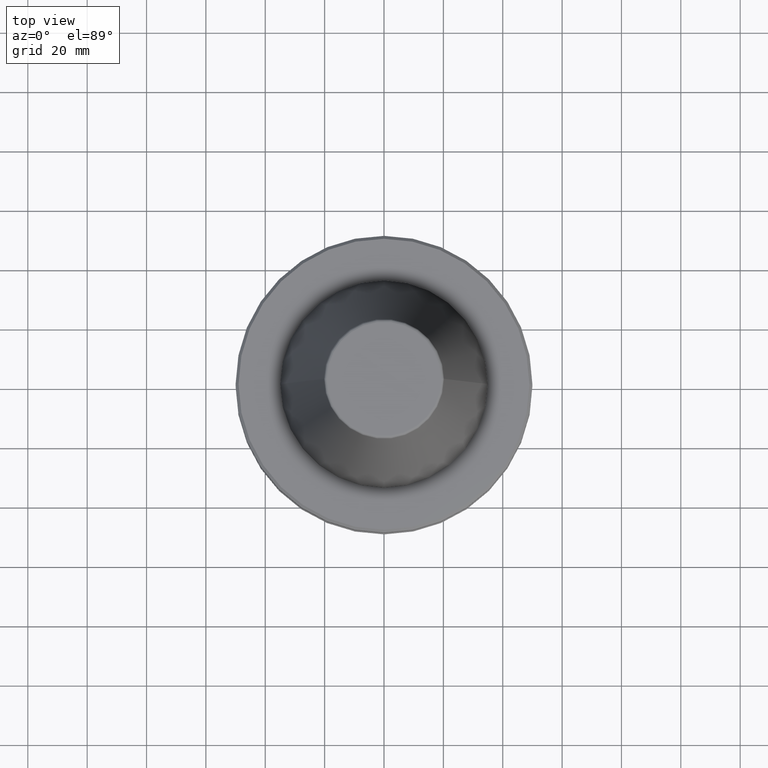
[diagram: clean part render]
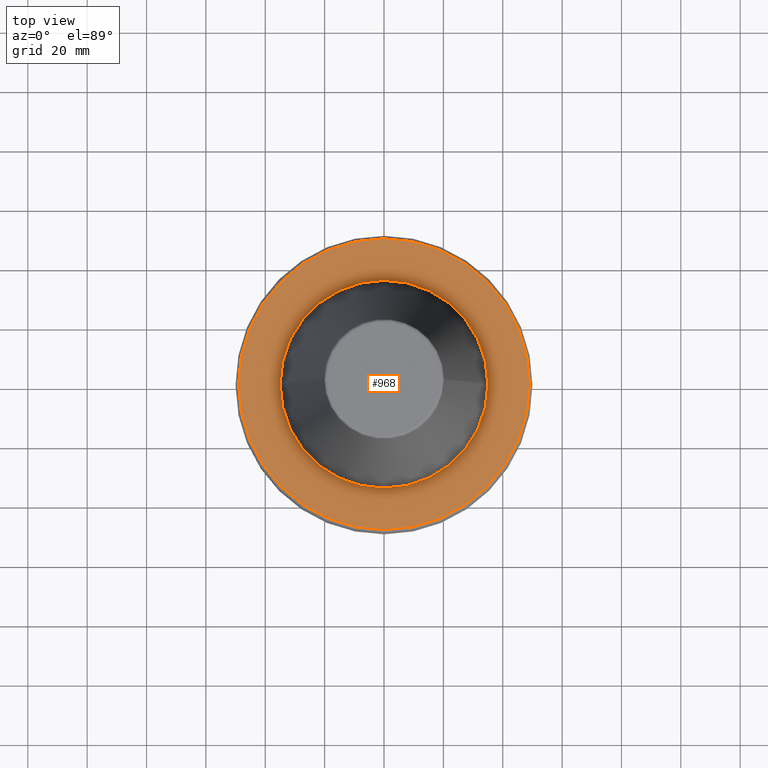
[diagram: same view with one face highlighted and labeled with its STEP entity id]
A machine part, top view. The second image highlights one B-rep face of the part: STEP entity #968.
In plain terms, the highlighted planar face has unit normal (0, 0, -1).
Its self-contained STEP definition (entity closure, byte-faithful):
#38 = EDGE_CURVE ( 'NONE', #441, #1191, #897, .T. ) ;
#80 = DIRECTION ( 'NONE',  ( 1.000000000000000000, 0.0000000000000000000, 0.0000000000000000000 ) ) ;
#118 = ORIENTED_EDGE ( 'NONE', *, *, #532, .T. ) ;
#162 = AXIS2_PLACEMENT_3D ( 'NONE', #1265, #712, #1276 ) ;
#192 = AXIS2_PLACEMENT_3D ( 'NONE', #581, #449, #886 ) ;
#227 = FACE_OUTER_BOUND ( 'NONE', #644, .T. ) ;
#263 = DIRECTION ( 'NONE',  ( 1.000000000000000000, 0.0000000000000000000, 0.0000000000000000000 ) ) ;
#306 = AXIS2_PLACEMENT_3D ( 'NONE', #816, #337, #1282 ) ;
#333 = EDGE_CURVE ( 'NONE', #1191, #441, #639, .T. ) ;
#337 = DIRECTION ( 'NONE',  ( -0.0000000000000000000, -0.0000000000000000000, 1.000000000000000000 ) ) ;
#441 = VERTEX_POINT ( 'NONE', #626 ) ;
#449 = DIRECTION ( 'NONE',  ( -0.0000000000000000000, -0.0000000000000000000, 1.000000000000000000 ) ) ;
#532 = EDGE_CURVE ( 'NONE', #557, #533, #1237, .T. ) ;
#533 = VERTEX_POINT ( 'NONE', #934 ) ;
#544 = CARTESIAN_POINT ( 'NONE',  ( 0.0000000000000000000, 0.0000000000000000000, -3.000000000001334900 ) ) ;
#557 = VERTEX_POINT ( 'NONE', #837 ) ;
#581 = CARTESIAN_POINT ( 'NONE',  ( 0.0000000000000000000, 0.0000000000000000000, -3.000000000001334900 ) ) ;
#626 = CARTESIAN_POINT ( 'NONE',  ( 34.99999999999970200, 0.0000000000000000000, -3.000000000001446000 ) ) ;
#639 = CIRCLE ( 'NONE', #306, 34.99999999999970200 ) ;
#644 = EDGE_LOOP ( 'NONE', ( #1308, #118 ) ) ;
#712 = DIRECTION ( 'NONE',  ( 0.0000000000000000000, 0.0000000000000000000, -1.000000000000000000 ) ) ;
#816 = CARTESIAN_POINT ( 'NONE',  ( 0.0000000000000000000, 0.0000000000000000000, -3.000000000001334900 ) ) ;
#826 = DIRECTION ( 'NONE',  ( -0.0000000000000000000, -0.0000000000000000000, 1.000000000000000000 ) ) ;
#837 = CARTESIAN_POINT ( 'NONE',  ( 48.99999999999992900, 6.062001655779390600E-015, -3.000000000001334900 ) ) ;
#844 = PLANE ( 'NONE',  #162 ) ;
#886 = DIRECTION ( 'NONE',  ( 1.000000000000000000, 0.0000000000000000000, 0.0000000000000000000 ) ) ;
#897 = CIRCLE ( 'NONE', #946, 34.99999999999970200 ) ;
#934 = CARTESIAN_POINT ( 'NONE',  ( -48.99999999999992900, 0.0000000000000000000, -3.000000000001334900 ) ) ;
#945 = DIRECTION ( 'NONE',  ( -0.0000000000000000000, -0.0000000000000000000, 1.000000000000000000 ) ) ;
#946 = AXIS2_PLACEMENT_3D ( 'NONE', #1259, #826, #263 ) ;
#965 = EDGE_CURVE ( 'NONE', #533, #557, #1280, .T. ) ;
#968 = ADVANCED_FACE ( 'NONE', ( #1005, #227 ), #844, .F. ) ;
#998 = AXIS2_PLACEMENT_3D ( 'NONE', #544, #945, #80 ) ;
#1005 = FACE_BOUND ( 'NONE', #1173, .T. ) ;
#1032 = CARTESIAN_POINT ( 'NONE',  ( -34.99999999999970200, 4.286263797015698600E-015, -3.000000000001446000 ) ) ;
#1173 = EDGE_LOOP ( 'NONE', ( #1330, #1232 ) ) ;
#1191 = VERTEX_POINT ( 'NONE', #1032 ) ;
#1232 = ORIENTED_EDGE ( 'NONE', *, *, #333, .F. ) ;
#1237 = CIRCLE ( 'NONE', #192, 48.99999999999992900 ) ;
#1259 = CARTESIAN_POINT ( 'NONE',  ( 0.0000000000000000000, 0.0000000000000000000, -3.000000000001334900 ) ) ;
#1265 = CARTESIAN_POINT ( 'NONE',  ( 0.0000000000000000000, 48.99999999999992900, -3.000000000001334900 ) ) ;
#1276 = DIRECTION ( 'NONE',  ( -1.000000000000000000, 0.0000000000000000000, -0.0000000000000000000 ) ) ;
#1280 = CIRCLE ( 'NONE', #998, 48.99999999999992900 ) ;
#1282 = DIRECTION ( 'NONE',  ( 1.000000000000000000, 0.0000000000000000000, 0.0000000000000000000 ) ) ;
#1308 = ORIENTED_EDGE ( 'NONE', *, *, #965, .T. ) ;
#1330 = ORIENTED_EDGE ( 'NONE', *, *, #38, .F. ) ;